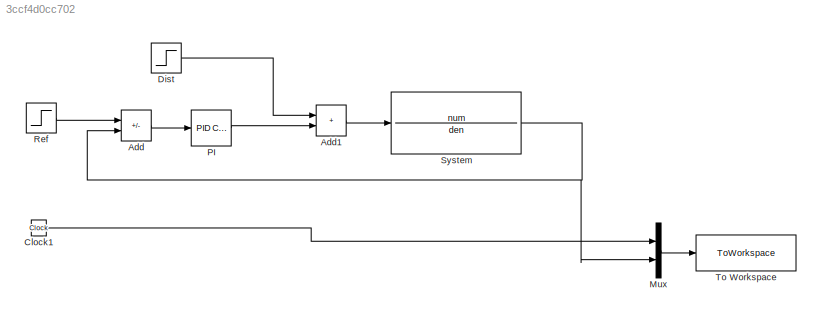
MODEL slx_3ccf4d0cc702
KIND model
CONFIG AbsTol = auto
CONFIG EnableMultiTasking = off
CONFIG FixedStep = 1E-4
CONFIG MaxStep = 1E-3
CONFIG MinStep = auto
CONFIG RelTol = 1e-3
CONFIG SampleTimeConstraint = Unconstrained
CONFIG SolverName = ode4
CONFIG StartTime = 0.0
CONFIG StopTime = 2
BLOCK [Sum] Add
  IconShape = rectangular
  Inputs = +-
  Ports = [2, 1]
BLOCK [Sum] Add1
  IconShape = rectangular
  Ports = [2, 1]
BLOCK [Clock] Clock1
  Decimation = 1
BLOCK [Step] Dist
  SampleTime = 0
  Time = 0
BLOCK [Mux] Mux
  DisplayOption = bar
  Inputs = 2
  Ports = [2, 1]
BLOCK [Reference] PI  REF=slpidlib/PID Controller
  Ports = [1, 1]
  SourceBlock = slpidlib/PID Controller
  SourceProductBaseCode = SL
  SourceType = PID 1dof
BLOCK [Step] Ref
  After = 0
  SampleTime = 0
  Time = 0
BLOCK [TransferFcn] System
  Denominator = den
  Numerator = num
BLOCK [ToWorkspace] To Workspace
  FixptAsFi = on
  MaxDataPoints = inf
  Ports = [1]
  SampleTime = 0.01
  Save2DSignal = 2-D array (concatenate along first dimension)
  VariableName = Results
LINE Add1:1 -> System:1
LINE Add:1 -> PI:1
LINE Clock1:1 -> Mux:1
LINE Dist:1 -> Add1:1
LINE Mux:1 -> To Workspace:1
LINE PI:1 -> Add1:2
LINE Ref:1 -> Add:1
NET System:1 -> Add:2, Mux:2
note: NET lines group one-source signal fan-out (src -> all destinations, sorted); 1:1 wires keep LINE
